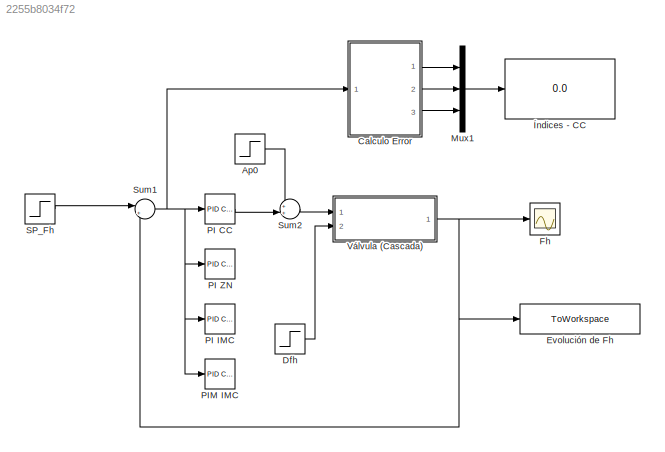
MODEL slx_2255b8034f72
KIND model
BLOCK [Step] Ap0
  After = Ap0
  Before = Ap0
  SampleTime = 1
  Time = 0
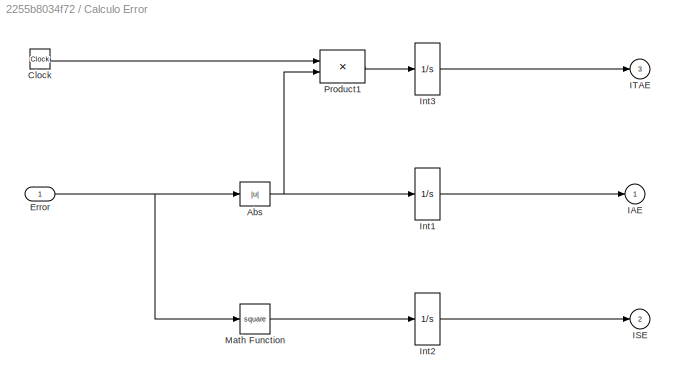
BLOCK [SubSystem] Calculo Error
  Ports = [1, 3]
  RequestExecContextInheritance = off
BLOCK [Abs] Calculo Error/Abs
  ZeroCross = off
BLOCK [Clock] Calculo Error/Clock
BLOCK [Inport] Calculo Error/Error
  IconDisplay = Port number
BLOCK [Outport] Calculo Error/IAE
  IconDisplay = Port number
  InitialOutput = 0
BLOCK [Outport] Calculo Error/ISE
  IconDisplay = Port number
  InitialOutput = 0
  Port = 2
BLOCK [Outport] Calculo Error/ITAE
  IconDisplay = Port number
  InitialOutput = 0
  Port = 3
BLOCK [Integrator] Calculo Error/Int1
  Ports = [1, 1]
BLOCK [Integrator] Calculo Error/Int2
  Ports = [1, 1]
BLOCK [Integrator] Calculo Error/Int3
  Ports = [1, 1]
BLOCK [Math] Calculo Error/Math Function
  Operator = square
  Ports = [1, 1]
BLOCK [Product] Calculo Error/Product1
  Ports = [2, 1]
  RndMeth = Floor
BLOCK [Step] Dfh
  After = Fh0*0.01
  SampleTime = 1
  Time = 10
BLOCK [ToWorkspace] Evolución de Fh
  MaxDataPoints = inf
  Ports = [1]
  SaveFormat = Structure With Time
  VariableName = Fh_v_CC_pert
BLOCK [Scope] Fh
  Floating = off
  NumInputPorts = 1
  Ports = [1]
  SaveName = ScopeData1
  ShowLegends = off
BLOCK [Mux] Mux1
  Inputs = 3
  Ports = [3, 1]
BLOCK [Reference] PI CC  REF=simulink_need_slupdate/PID Controller
  D = 0
  I = Ki_CC_v
  P = Kc_CC_v
  Ports = [1, 1]
  SourceBlock = simulink_need_slupdate/PID Controller
  SourceType = PID Controller
BLOCK [Reference] PI IMC  REF=simulink_need_slupdate/PID Controller
  D = 0
  I = Ki_IMC_v
  P = Kc_IMC_v
  Ports = [1, 1]
  SourceBlock = simulink_need_slupdate/PID Controller
  SourceType = PID Controller
BLOCK [Reference] PI ZN  REF=simulink_need_slupdate/PID Controller
  D = 0
  I = Ki_ZN_v
  P = Kc_ZN_v
  Ports = [1, 1]
  SourceBlock = simulink_need_slupdate/PID Controller
  SourceType = PID Controller
BLOCK [Reference] PIM IMC  REF=simulink_need_slupdate/PID Controller
  D = 0
  I = KiPIM_IMC_v
  P = KcPIM_IMC_v
  Ports = [1, 1]
  SourceBlock = simulink_need_slupdate/PID Controller
  SourceType = PID Controller
BLOCK [Step] SP_Fh
  After = Fh0*1
  Before = Fh0
  SampleTime = 1
  Time = 10
BLOCK [Sum] Sum1
  IconShape = round
  InputSameDT = off
  Inputs = |+-
  OutDataTypeStr = Inherit: Inherit via internal rule
  Ports = [2, 1]
  SaturateOnIntegerOverflow = off
BLOCK [Sum] Sum2
  IconShape = round
  InputSameDT = off
  Inputs = ++|
  OutDataTypeStr = Inherit: Inherit via internal rule
  Ports = [2, 1]
  SaturateOnIntegerOverflow = off
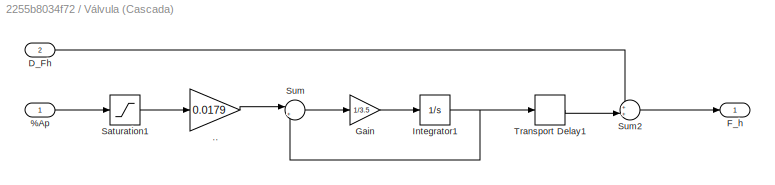
BLOCK [SubSystem] Válvula (Cascada)
  Ports = [2, 1]
  RequestExecContextInheritance = off
BLOCK [Inport] Válvula (Cascada)/%Ap
  IconDisplay = Port number
BLOCK [Gain] Válvula (Cascada)/..
  Gain = 0.0179
  OutDataTypeStr = Inherit: Inherit via internal rule
  ParamDataTypeStr = Inherit: Inherit via internal rule
  SaturateOnIntegerOverflow = off
BLOCK [Inport] Válvula (Cascada)/D_Fh
  IconDisplay = Port number
  Port = 2
BLOCK [Outport] Válvula (Cascada)/F_h
  IconDisplay = Port number
BLOCK [Gain] Válvula (Cascada)/Gain
  Gain = 1/3.5
  OutDataTypeStr = Inherit: Inherit via internal rule
  ParamDataTypeStr = Inherit: Inherit via internal rule
  SaturateOnIntegerOverflow = off
BLOCK [Integrator] Válvula (Cascada)/Integrator1
  InitialCondition = Fh0
  Ports = [1, 1]
BLOCK [Saturate] Válvula (Cascada)/Saturation1
  InputPortMap = u0
  LowerLimit = 0
  Ports = [1, 1]
  UpperLimit = 100
BLOCK [Sum] Válvula (Cascada)/Sum
  IconShape = round
  InputSameDT = off
  Inputs = |+-
  OutDataTypeStr = Inherit: Inherit via internal rule
  Ports = [2, 1]
  SaturateOnIntegerOverflow = off
BLOCK [Sum] Válvula (Cascada)/Sum2
  IconShape = round
  InputSameDT = off
  Inputs = ++|
  OutDataTypeStr = Inherit: Inherit via internal rule
  Ports = [2, 1]
  SaturateOnIntegerOverflow = off
BLOCK [TransportDelay] Válvula (Cascada)/Transport Delay1
  InitialOutput = Fh0
  Ports = [1, 1]
BLOCK [Display] Índices - CC
  Decimation = 1
  Ports = [1]
  SampleTime = 1
LINE Ap0:1 -> Sum2:1
NET Calculo Error/Abs:1 -> Calculo Error/Int1:1, Calculo Error/Product1:2
LINE Calculo Error/Clock:1 -> Calculo Error/Product1:1
NET Calculo Error/Error:1 -> Calculo Error/Abs:1, Calculo Error/Math Function:1
LINE Calculo Error/Int1:1 -> Calculo Error/IAE:1
LINE Calculo Error/Int2:1 -> Calculo Error/ISE:1
LINE Calculo Error/Int3:1 -> Calculo Error/ITAE:1
LINE Calculo Error/Math Function:1 -> Calculo Error/Int2:1
LINE Calculo Error/Product1:1 -> Calculo Error/Int3:1
LINE Calculo Error:1 -> Mux1:1
LINE Calculo Error:2 -> Mux1:2
LINE Calculo Error:3 -> Mux1:3
LINE Dfh:1 -> Válvula (Cascada):2
LINE Mux1:1 -> Índices - CC:1
LINE PI CC:1 -> Sum2:2
LINE SP_Fh:1 -> Sum1:1
NET Sum1:1 -> Calculo Error:1, PI CC:1, PI IMC:1, PI ZN:1, PIM IMC:1
LINE Sum2:1 -> Válvula (Cascada):1
LINE Válvula (Cascada)/%Ap:1 -> Válvula (Cascada)/Saturation1:1
LINE Válvula (Cascada)/..:1 -> Válvula (Cascada)/Sum:1
LINE Válvula (Cascada)/D_Fh:1 -> Válvula (Cascada)/Sum2:1
LINE Válvula (Cascada)/Gain:1 -> Válvula (Cascada)/Integrator1:1
NET Válvula (Cascada)/Integrator1:1 -> Válvula (Cascada)/Sum:2, Válvula (Cascada)/Transport Delay1:1
LINE Válvula (Cascada)/Saturation1:1 -> Válvula (Cascada)/..:1
LINE Válvula (Cascada)/Sum2:1 -> Válvula (Cascada)/F_h:1
LINE Válvula (Cascada)/Sum:1 -> Válvula (Cascada)/Gain:1
LINE Válvula (Cascada)/Transport Delay1:1 -> Válvula (Cascada)/Sum2:2
NET Válvula (Cascada):1 -> Evolución de Fh:1, Fh:1, Sum1:2
note: NET lines group one-source signal fan-out (src -> all destinations, sorted); 1:1 wires keep LINE
